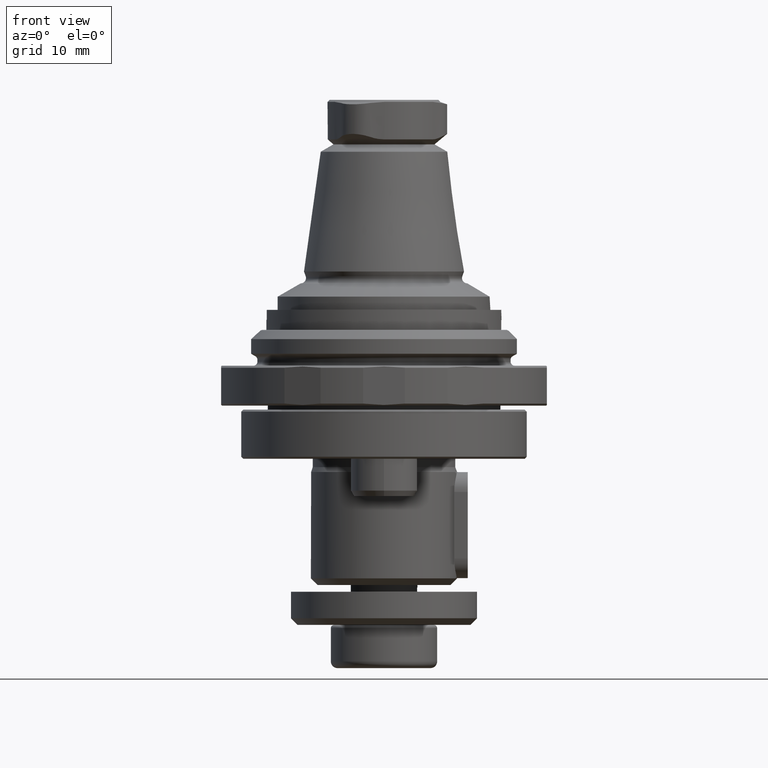
[diagram: clean part render]
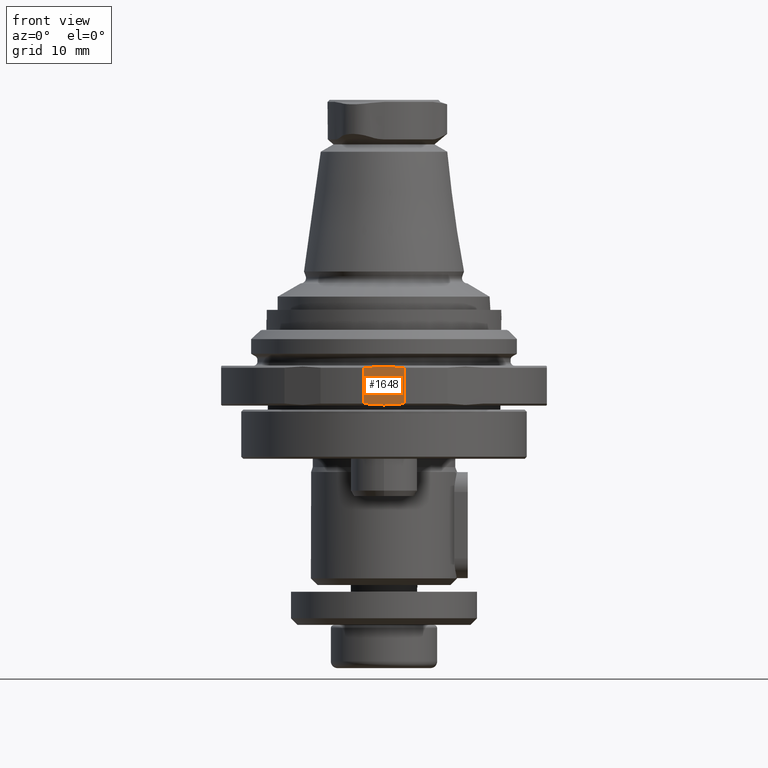
[diagram: same view with one face highlighted and labeled with its STEP entity id]
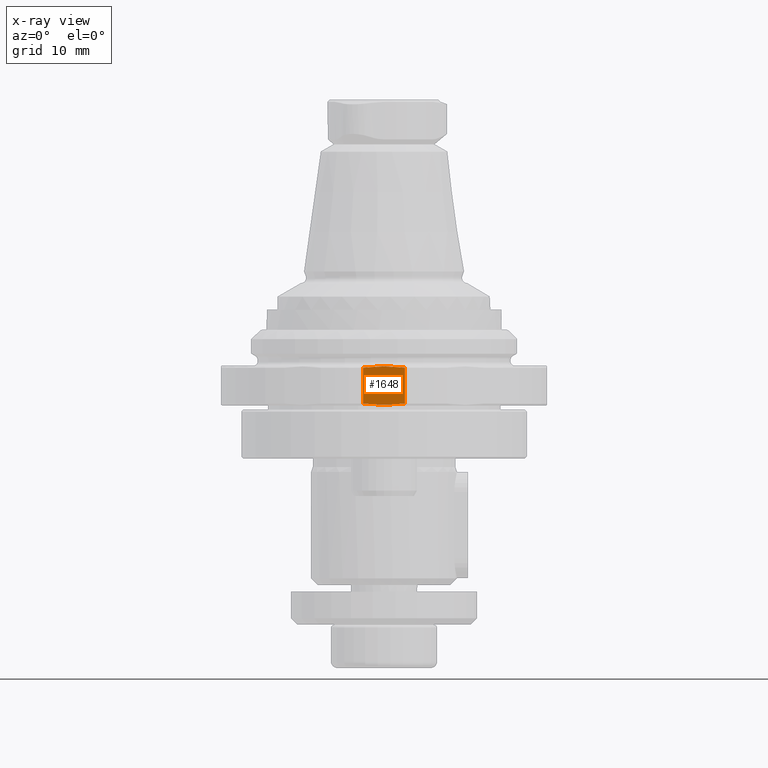
[diagram: x-ray of the same camera — body ghosted, the highlighted face saturated]
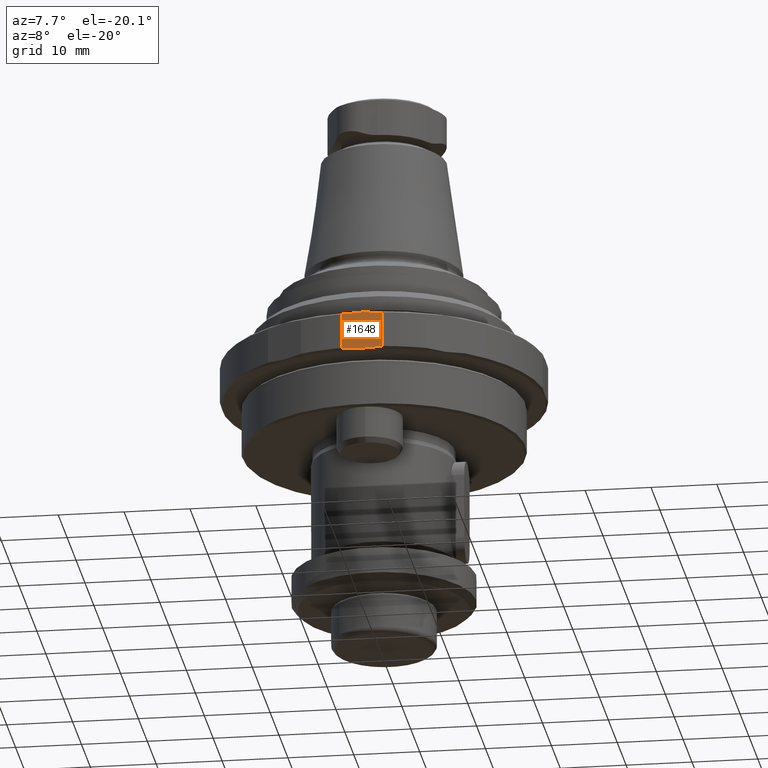
[diagram: same view with one face highlighted and labeled with its STEP entity id]
A machine part, front view. The second image highlights one B-rep face of the part: STEP entity #1648.
The next image is the same camera in x-ray: the body ghosted, the highlighted face saturated — about 0% of this face is hidden behind the body in this view.
A second angle (auxiliary view) of the same face is appended — the face is thin or edge-on in the first view.
In plain terms, the highlighted planar face has unit normal (0, 1, -0).
Its self-contained STEP definition (entity closure, byte-faithful):
#49=PLANE('',#1845);
#122=LINE('',#2971,#193);
#123=LINE('',#2978,#194);
#193=VECTOR('',#2254,1000.);
#194=VECTOR('',#2257,1000.);
#303=B_SPLINE_CURVE_WITH_KNOTS('',3,(#2912,#2913,#2914,#2915),
 .UNSPECIFIED.,.F.,.F.,(4,4),(0.0112071973389998,0.0174580677164328),
 .UNSPECIFIED.);
#310=B_SPLINE_CURVE_WITH_KNOTS('',3,(#2973,#2974,#2975,#2976),
 .UNSPECIFIED.,.F.,.F.,(4,4),(0.0112071973389928,0.0174580677164259),
 .UNSPECIFIED.);
#619=ORIENTED_EDGE('',*,*,#953,.F.);
#620=ORIENTED_EDGE('',*,*,#954,.F.);
#621=ORIENTED_EDGE('',*,*,#955,.F.);
#622=ORIENTED_EDGE('',*,*,#934,.F.);
#934=EDGE_CURVE('',#1111,#1112,#303,.T.);
#953=EDGE_CURVE('',#1124,#1111,#122,.F.);
#954=EDGE_CURVE('',#1125,#1124,#310,.F.);
#955=EDGE_CURVE('',#1112,#1125,#123,.T.);
#1111=VERTEX_POINT('',#2911);
#1112=VERTEX_POINT('',#2916);
#1124=VERTEX_POINT('',#2970);
#1125=VERTEX_POINT('',#2977);
#1341=EDGE_LOOP('',(#619,#620,#621,#622));
#1501=FACE_BOUND('',#1341,.T.);
#1648=ADVANCED_FACE('',(#1501),#49,.F.);
#1845=AXIS2_PLACEMENT_3D('',#2972,#2255,#2256);
#2254=DIRECTION('',(-2.60563148754756E-18,-2.60563148754756E-18,-1.));
#2255=DIRECTION('',(6.12303176911189E-17,1.,-2.60563148754756E-18));
#2256=DIRECTION('',(-1.,6.12303176911189E-17,2.60563148754756E-18));
#2257=DIRECTION('',(-2.60563148754756E-18,-2.60563148754756E-18,-1.));
#2911=CARTESIAN_POINT('',(-3.13687742827159,-24.5,-1.29999999999988));
#2912=CARTESIAN_POINT('',(-3.13687742827159,-24.5,-1.29999999999988));
#2913=CARTESIAN_POINT('',(-1.04673923052096,-24.5,-1.03455435892755));
#2914=CARTESIAN_POINT('',(1.0445112014509,-24.5,-1.03427140127171));
#2915=CARTESIAN_POINT('',(3.13687742827159,-24.5,-1.29999999999987));
#2916=CARTESIAN_POINT('',(3.13687742827159,-24.5,-1.29999999999988));
#2970=CARTESIAN_POINT('',(-3.13687742827159,-24.5,-6.70000000000001));
#2971=CARTESIAN_POINT('',(-3.13687742827159,-24.5,-1.00000000000001));
#2972=CARTESIAN_POINT('',(-1.52984698239045E-15,-24.5,-3.99999999999994));
#2973=CARTESIAN_POINT('',(-3.13687742827159,-24.5,-6.70000000000001));
#2974=CARTESIAN_POINT('',(-1.04673923052096,-24.5,-6.96544564107258));
#2975=CARTESIAN_POINT('',(1.04451120145091,-24.5,-6.96572859872842));
#2976=CARTESIAN_POINT('',(3.13687742827158,-24.5,-6.70000000000001));
#2977=CARTESIAN_POINT('',(3.13687742827159,-24.5,-6.70000000000001));
#2978=CARTESIAN_POINT('',(3.13687742827159,-24.5,-1.00000000000001));